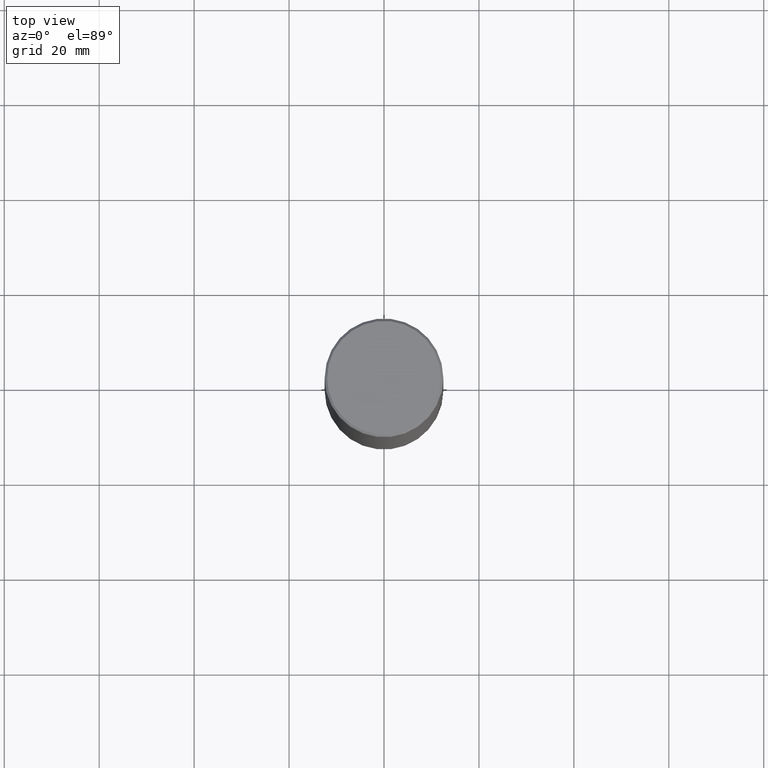
[diagram: clean part render]
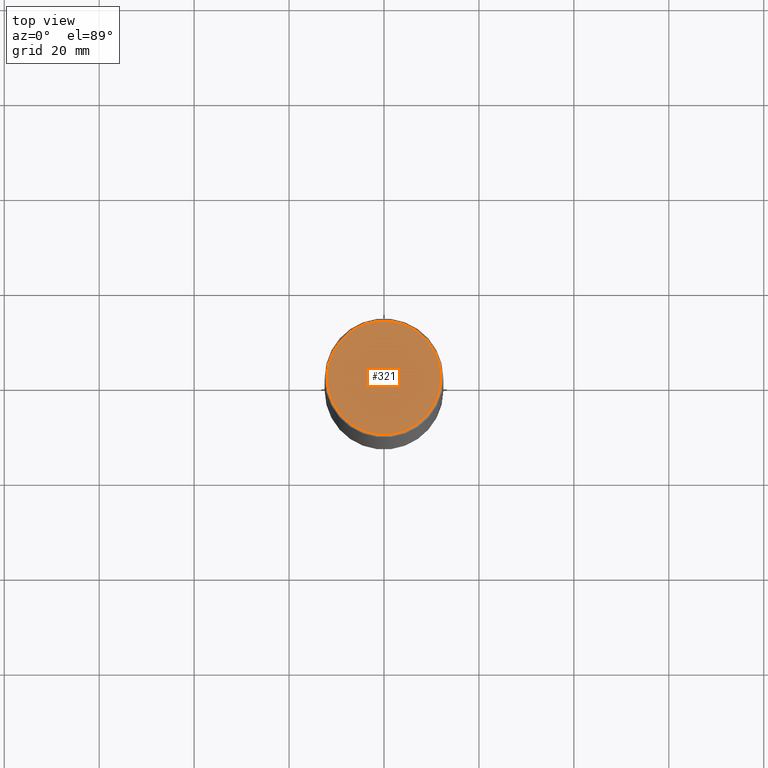
[diagram: same view with one face highlighted and labeled with its STEP entity id]
A machine part, top view. The second image highlights one B-rep face of the part: STEP entity #321.
In plain terms, the highlighted planar face has unit normal (0, -0, -1).
Its self-contained STEP definition (entity closure, byte-faithful):
#28 = VERTEX_POINT ( 'NONE', #240 ) ;
#36 = AXIS2_PLACEMENT_3D ( 'NONE', #44, #90, #41 ) ;
#41 = DIRECTION ( 'NONE',  ( 1.000000000000000000, -6.982962677686265922E-15, 4.876006802227162976E-29 ) ) ;
#44 = CARTESIAN_POINT ( 'NONE',  ( -2.087702828670439639E-46, 2.980686340760894400E-32, 8.537024980200822558E-18 ) ) ;
#45 = EDGE_LOOP ( 'NONE', ( #189, #303 ) ) ;
#56 = CIRCLE ( 'NONE', #98, 0.4721499999999996255 ) ;
#62 = CARTESIAN_POINT ( 'NONE',  ( -0.4721499999999996255, 3.331920641657999252E-15, 8.537024980177643606E-18 ) ) ;
#73 = EDGE_CURVE ( 'NONE', #347, #28, #56, .T. ) ;
#90 = DIRECTION ( 'NONE',  ( -2.445468806185136597E-29, 3.491481338843145583E-15, 1.000000000000000000 ) ) ;
#98 = AXIS2_PLACEMENT_3D ( 'NONE', #336, #284, #131 ) ;
#99 = CIRCLE ( 'NONE', #36, 0.4721499999999996255 ) ;
#109 = DIRECTION ( 'NONE',  ( -1.000000000000000000, 6.982962677686265922E-15, -4.876176775795935793E-29 ) ) ;
#131 = DIRECTION ( 'NONE',  ( 1.000000000000000000, -6.982962677686265922E-15, 4.876006802227162976E-29 ) ) ;
#189 = ORIENTED_EDGE ( 'NONE', *, *, #73, .T. ) ;
#214 = FACE_OUTER_BOUND ( 'NONE', #45, .T. ) ;
#240 = CARTESIAN_POINT ( 'NONE',  ( 0.4721499999999996255, -3.342703923013973396E-15, 8.537024980224040028E-18 ) ) ;
#245 = AXIS2_PLACEMENT_3D ( 'NONE', #311, #364, #109 ) ;
#255 = EDGE_CURVE ( 'NONE', #28, #347, #99, .T. ) ;
#284 = DIRECTION ( 'NONE',  ( -2.445468806185136597E-29, 3.491481338843145583E-15, 1.000000000000000000 ) ) ;
#300 = PLANE ( 'NONE',  #245 ) ;
#303 = ORIENTED_EDGE ( 'NONE', *, *, #255, .T. ) ;
#311 = CARTESIAN_POINT ( 'NONE',  ( 3.297005828269567997E-15, 0.4721499999999996255, -1.644234401644689488E-15 ) ) ;
#321 = ADVANCED_FACE ( 'NONE', ( #214 ), #300, .F. ) ;
#336 = CARTESIAN_POINT ( 'NONE',  ( -2.087702828670439639E-46, 2.980686340760894400E-32, 8.537024980200822558E-18 ) ) ;
#347 = VERTEX_POINT ( 'NONE', #62 ) ;
#364 = DIRECTION ( 'NONE',  ( 2.438088387897960049E-29, -3.491481338843145188E-15, -1.000000000000000000 ) ) ;